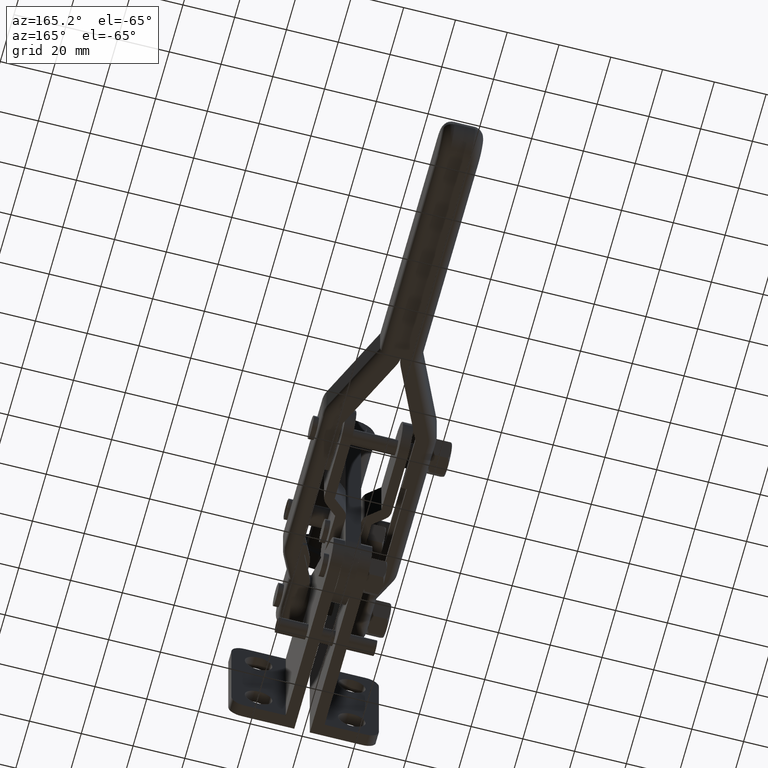
[diagram: clean part render]
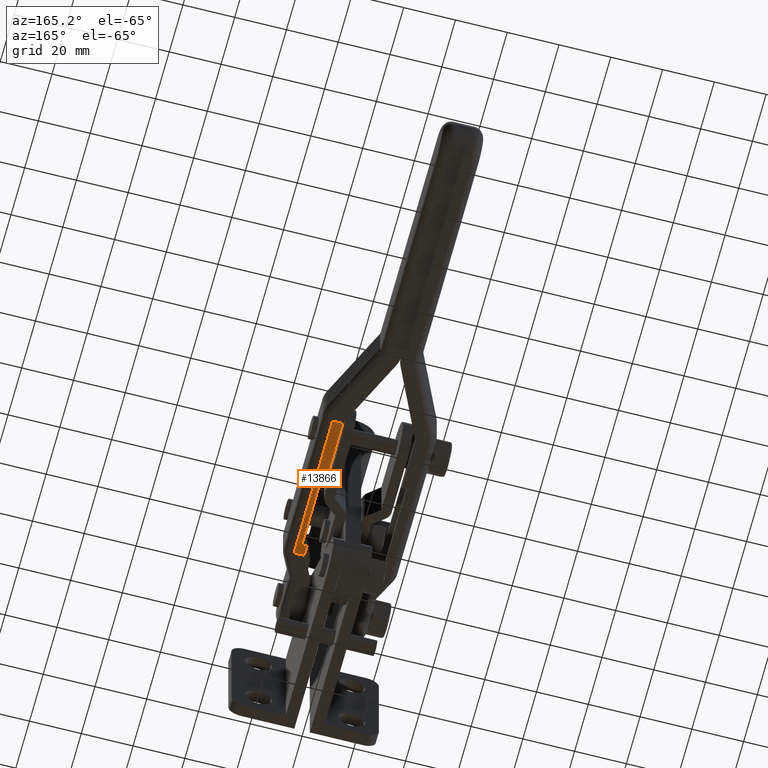
[diagram: same view with one face highlighted and labeled with its STEP entity id]
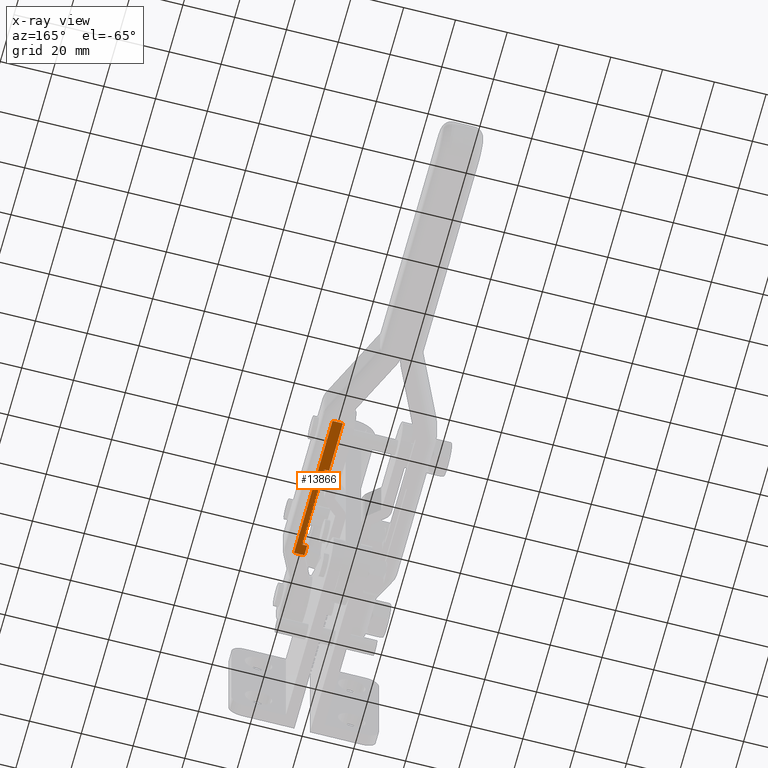
[diagram: x-ray of the same camera — body ghosted, the highlighted face saturated]
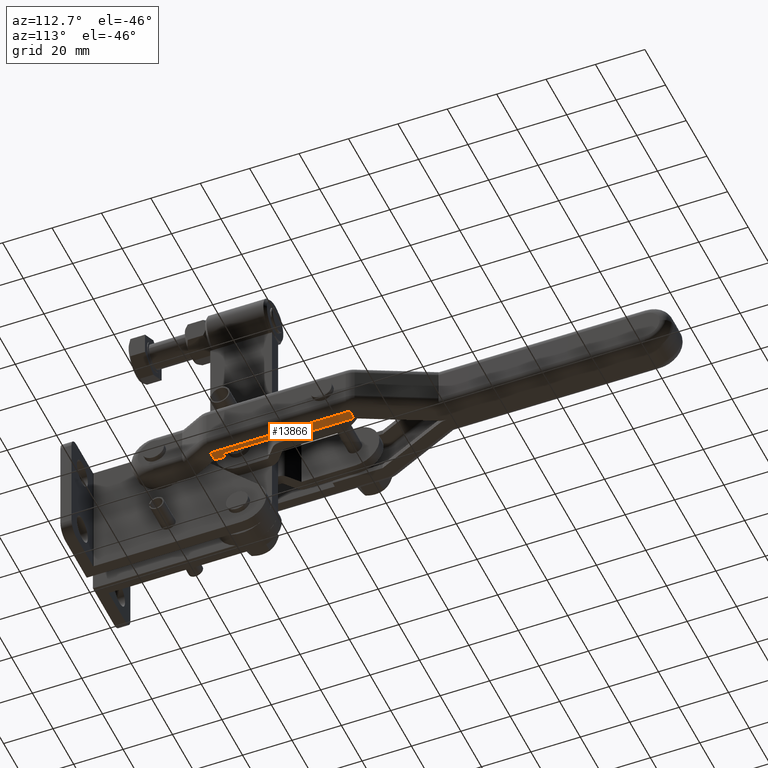
[diagram: same view with one face highlighted and labeled with its STEP entity id]
A machine part, auxiliary view. The second image highlights one B-rep face of the part: STEP entity #13866.
The next image is the same camera in x-ray: the body ghosted, the highlighted face saturated — about 0% of this face is hidden behind the body in this view.
A second angle (auxiliary view) of the same face is appended — the face is thin or edge-on in the first view.
In plain terms, the highlighted planar face has unit normal (0, -0.0024, -1).
Its self-contained STEP definition (entity closure, byte-faithful):
#79 = DIRECTION ( 'NONE',  ( 1.618576314837609000E-016, -0.9999970214601610100, 0.002440711127167159500 ) ) ;
#152 = CARTESIAN_POINT ( 'NONE',  ( 13.99999999999999100, 114.4749855203333300, -19.84766736911763000 ) ) ;
#363 = VECTOR ( 'NONE', #6874, 1000.000000000000000 ) ;
#481 = DIRECTION ( 'NONE',  ( 1.000000000000000000, 2.775066139920495100E-016, -3.105148141283966800E-020 ) ) ;
#988 = VERTEX_POINT ( 'NONE', #10552 ) ;
#1094 = DIRECTION ( 'NONE',  ( 1.000000000000000000, 2.775066139920495100E-016, -3.105148141283966800E-020 ) ) ;
#1144 = CARTESIAN_POINT ( 'NONE',  ( 15.99999999999999600, 60.47514636148466100, -19.71586896825061400 ) ) ;
#1148 = EDGE_CURVE ( 'NONE', #9567, #14012, #18523, .T. ) ;
#1536 = CARTESIAN_POINT ( 'NONE',  ( 17.99999999999999600, 112.6780112450373700, -19.84328146094507900 ) ) ;
#2066 = CARTESIAN_POINT ( 'NONE',  ( 13.99999999999999100, 114.4749855203333300, -19.84766736911763000 ) ) ;
#2233 = CARTESIAN_POINT ( 'NONE',  ( 14.00000000000000700, 56.38730915505522700, -19.70589170877715900 ) ) ;
#2594 = ORIENTED_EDGE ( 'NONE', *, *, #11885, .F. ) ;
#2856 = PLANE ( 'NONE',  #3125 ) ;
#3122 = VECTOR ( 'NONE', #481, 1000.000000000000000 ) ;
#3125 = AXIS2_PLACEMENT_3D ( 'NONE', #6290, #18090, #7964 ) ;
#3233 = CARTESIAN_POINT ( 'NONE',  ( 15.99999999999999600, 60.47514636148466100, -19.71586896825061400 ) ) ;
#3264 = VERTEX_POINT ( 'NONE', #6997 ) ;
#4536 = EDGE_CURVE ( 'NONE', #18819, #19941, #5341, .T. ) ;
#5211 = CARTESIAN_POINT ( 'NONE',  ( 15.99999999999998900, 92.47505104820980600, -19.79397172431996000 ) ) ;
#5341 = LINE ( 'NONE', #5211, #363 ) ;
#5530 = EDGE_CURVE ( 'NONE', #3264, #18819, #9750, .T. ) ;
#6290 = CARTESIAN_POINT ( 'NONE',  ( 13.99061831399952800, 112.7202996656123700, -19.84338467507115000 ) ) ;
#6567 = CARTESIAN_POINT ( 'NONE',  ( 15.99999999999998900, 92.47505104820980600, -19.79397172431996000 ) ) ;
#6874 = DIRECTION ( 'NONE',  ( 1.690856459669976300E-016, -0.9999970214601610100, 0.002440711127167159500 ) ) ;
#6997 = CARTESIAN_POINT ( 'NONE',  ( 13.99999999999999800, 92.47505104820980600, -19.79397172431996000 ) ) ;
#7767 = ORIENTED_EDGE ( 'NONE', *, *, #4536, .F. ) ;
#7964 = DIRECTION ( 'NONE',  ( 1.000000000000000000, 2.775066139920495100E-016, -3.105148141283966800E-020 ) ) ;
#8903 = ORIENTED_EDGE ( 'NONE', *, *, #1148, .F. ) ;
#9567 = VERTEX_POINT ( 'NONE', #19056 ) ;
#9750 = LINE ( 'NONE', #19558, #13710 ) ;
#9944 = DIRECTION ( 'NONE',  ( -1.618576314837609200E-016, 0.9999970214601610100, -0.002440711127167159500 ) ) ;
#10536 = CARTESIAN_POINT ( 'NONE',  ( 13.99999999999999100, 112.6780112450373700, -19.84328146094507900 ) ) ;
#10552 = CARTESIAN_POINT ( 'NONE',  ( 14.00000000000000700, 60.47514636148465400, -19.71586896825061400 ) ) ;
#10674 = DIRECTION ( 'NONE',  ( -1.000000000000000000, -2.775066139920495100E-016, 3.105148141283966800E-020 ) ) ;
#11281 = FACE_OUTER_BOUND ( 'NONE', #19008, .T. ) ;
#11669 = LINE ( 'NONE', #20767, #15629 ) ;
#11885 = EDGE_CURVE ( 'NONE', #15299, #9567, #16562, .T. ) ;
#12516 = LINE ( 'NONE', #152, #21487 ) ;
#12819 = LINE ( 'NONE', #2066, #15230 ) ;
#12822 = ORIENTED_EDGE ( 'NONE', *, *, #20892, .F. ) ;
#12989 = VERTEX_POINT ( 'NONE', #10536 ) ;
#13210 = ORIENTED_EDGE ( 'NONE', *, *, #19593, .F. ) ;
#13314 = CARTESIAN_POINT ( 'NONE',  ( 17.99999999999999600, 112.6780112450373700, -19.84328146094507900 ) ) ;
#13473 = VECTOR ( 'NONE', #9944, 1000.000000000000000 ) ;
#13710 = VECTOR ( 'NONE', #1094, 1000.000000000000000 ) ;
#13866 = ADVANCED_FACE ( 'NONE', ( #11281 ), #2856, .T. ) ;
#14012 = VERTEX_POINT ( 'NONE', #1536 ) ;
#14491 = ORIENTED_EDGE ( 'NONE', *, *, #5530, .F. ) ;
#14674 = EDGE_CURVE ( 'NONE', #12989, #3264, #12516, .T. ) ;
#15230 = VECTOR ( 'NONE', #15534, 1000.000000000000000 ) ;
#15299 = VERTEX_POINT ( 'NONE', #19183 ) ;
#15534 = DIRECTION ( 'NONE',  ( 1.618576314837609000E-016, -0.9999970214601610100, 0.002440711127167159500 ) ) ;
#15629 = VECTOR ( 'NONE', #10674, 1000.000000000000000 ) ;
#16562 = LINE ( 'NONE', #2233, #3122 ) ;
#17536 = DIRECTION ( 'NONE',  ( -1.000000000000000000, -2.775066139920495100E-016, 3.105148141283966800E-020 ) ) ;
#18090 = DIRECTION ( 'NONE',  ( 6.462620917081117900E-019, -0.002440711127167159500, -0.9999970214601610100 ) ) ;
#18523 = LINE ( 'NONE', #13314, #13473 ) ;
#18819 = VERTEX_POINT ( 'NONE', #6567 ) ;
#19008 = EDGE_LOOP ( 'NONE', ( #14491, #21717, #19621, #8903, #2594, #13210, #12822, #7767 ) ) ;
#19056 = CARTESIAN_POINT ( 'NONE',  ( 18.00000000000001400, 56.38730915505523500, -19.70589170877715900 ) ) ;
#19104 = VECTOR ( 'NONE', #17536, 1000.000000000000000 ) ;
#19183 = CARTESIAN_POINT ( 'NONE',  ( 14.00000000000000700, 56.38730915505522700, -19.70589170877715900 ) ) ;
#19558 = CARTESIAN_POINT ( 'NONE',  ( 15.99999999999998900, 92.47505104820980600, -19.79397172431996000 ) ) ;
#19593 = EDGE_CURVE ( 'NONE', #988, #15299, #12819, .T. ) ;
#19621 = ORIENTED_EDGE ( 'NONE', *, *, #21203, .F. ) ;
#19941 = VERTEX_POINT ( 'NONE', #3233 ) ;
#20767 = CARTESIAN_POINT ( 'NONE',  ( 21.99999999999999600, 112.6780112450373700, -19.84328146094507900 ) ) ;
#20892 = EDGE_CURVE ( 'NONE', #19941, #988, #21193, .T. ) ;
#21193 = LINE ( 'NONE', #1144, #19104 ) ;
#21203 = EDGE_CURVE ( 'NONE', #14012, #12989, #11669, .T. ) ;
#21487 = VECTOR ( 'NONE', #79, 1000.000000000000000 ) ;
#21717 = ORIENTED_EDGE ( 'NONE', *, *, #14674, .F. ) ;